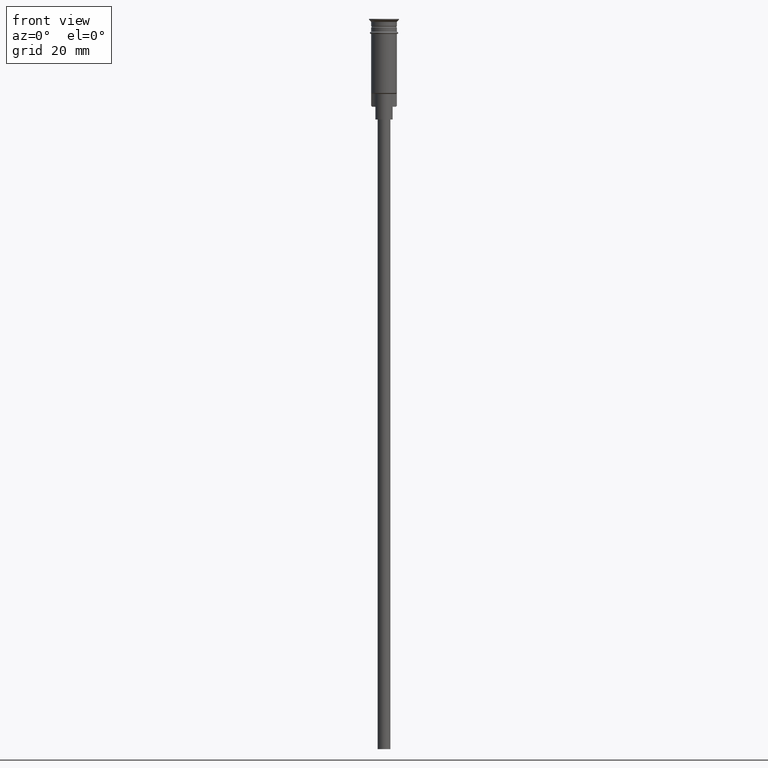
[diagram: clean part render]
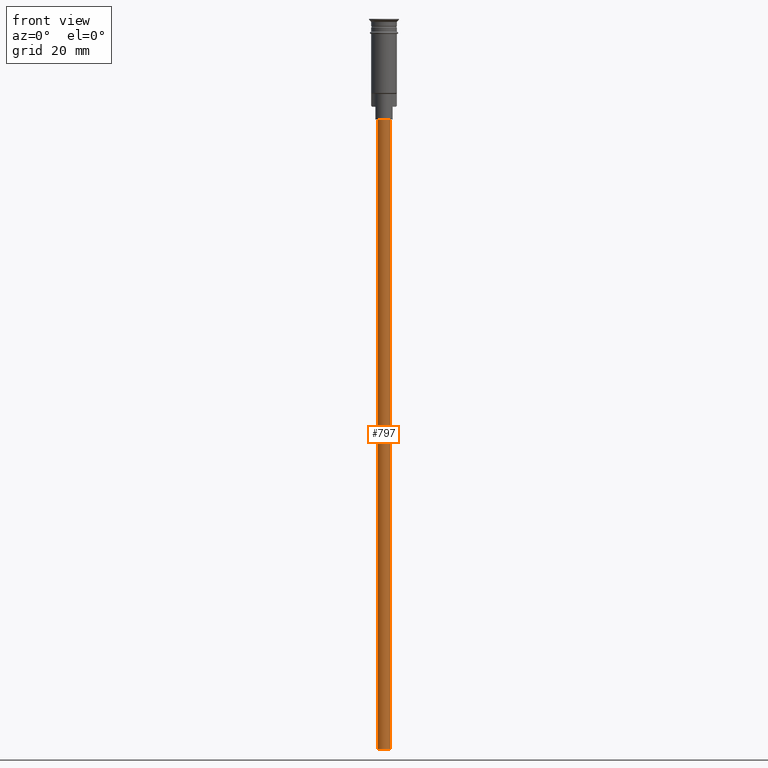
[diagram: same view with one face highlighted and labeled with its STEP entity id]
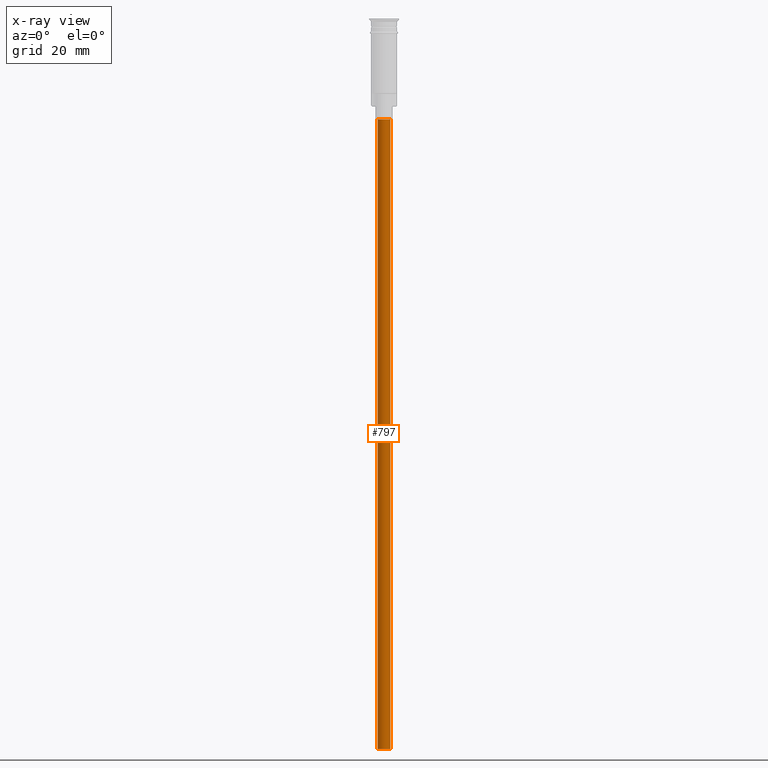
[diagram: x-ray of the same camera — body ghosted, the highlighted face saturated]
A machine part, front view. The second image highlights one B-rep face of the part: STEP entity #797.
The next image is the same camera in x-ray: the body ghosted, the highlighted face saturated — about 0% of this face is hidden behind the body in this view.
In plain terms, the highlighted cylindrical surface (edge-blend (fillet) strip) has radius 1.5 mm, axis along (-0, -0, 1).
Its self-contained STEP definition (entity closure, byte-faithful):
#45 = CARTESIAN_POINT ( 'NONE',  ( -1.500000000000000222, 1.836970198721030181E-16, -170.4999999999999716 ) ) ;
#46 = CARTESIAN_POINT ( 'NONE',  ( 0.000000000000000000, 0.000000000000000000, -170.4999999999999716 ) ) ;
#79 = AXIS2_PLACEMENT_3D ( 'NONE', #1454, #347, #949 ) ;
#149 = VERTEX_POINT ( 'NONE', #45 ) ;
#212 = EDGE_CURVE ( 'NONE', #862, #487, #1120, .T. ) ;
#239 = EDGE_CURVE ( 'NONE', #149, #768, #1349, .T. ) ;
#240 = CARTESIAN_POINT ( 'NONE',  ( -1.500000000000000222, 1.836970198721030181E-16, -170.4999999999999716 ) ) ;
#326 = CARTESIAN_POINT ( 'NONE',  ( 1.500000000000000222, 0.000000000000000000, -170.4999999999999716 ) ) ;
#347 = DIRECTION ( 'NONE',  ( 0.000000000000000000, 0.000000000000000000, -1.000000000000000000 ) ) ;
#441 = CYLINDRICAL_SURFACE ( 'NONE', #1599, 1.500000000000000222 ) ;
#487 = VERTEX_POINT ( 'NONE', #496 ) ;
#495 = CARTESIAN_POINT ( 'NONE',  ( 1.500000000000000222, 0.000000000000000000, -170.4999999999999716 ) ) ;
#496 = CARTESIAN_POINT ( 'NONE',  ( 1.500000000000000222, 0.000000000000000000, -23.50000000000000000 ) ) ;
#557 = DIRECTION ( 'NONE',  ( 1.000000000000000000, 0.000000000000000000, 0.000000000000000000 ) ) ;
#608 = DIRECTION ( 'NONE',  ( -0.000000000000000000, -0.000000000000000000, 1.000000000000000000 ) ) ;
#648 = DIRECTION ( 'NONE',  ( 0.000000000000000000, 0.000000000000000000, -1.000000000000000000 ) ) ;
#768 = VERTEX_POINT ( 'NONE', #1136 ) ;
#791 = AXIS2_PLACEMENT_3D ( 'NONE', #46, #648, #1027 ) ;
#797 = ADVANCED_FACE ( 'NONE', ( #1569 ), #441, .T. ) ;
#813 = DIRECTION ( 'NONE',  ( -0.000000000000000000, -0.000000000000000000, 1.000000000000000000 ) ) ;
#816 = ORIENTED_EDGE ( 'NONE', *, *, #1512, .F. ) ;
#862 = VERTEX_POINT ( 'NONE', #326 ) ;
#941 = CARTESIAN_POINT ( 'NONE',  ( 0.000000000000000000, 0.000000000000000000, -170.4999999999999716 ) ) ;
#949 = DIRECTION ( 'NONE',  ( -1.000000000000000000, 0.000000000000000000, 0.000000000000000000 ) ) ;
#957 = CIRCLE ( 'NONE', #79, 1.500000000000000222 ) ;
#981 = VECTOR ( 'NONE', #608, 1000.000000000000000 ) ;
#1027 = DIRECTION ( 'NONE',  ( -1.000000000000000000, 0.000000000000000000, 0.000000000000000000 ) ) ;
#1120 = LINE ( 'NONE', #495, #1184 ) ;
#1136 = CARTESIAN_POINT ( 'NONE',  ( -1.500000000000000222, 1.836970198721030181E-16, -23.50000000000000000 ) ) ;
#1184 = VECTOR ( 'NONE', #1340, 1000.000000000000000 ) ;
#1243 = ORIENTED_EDGE ( 'NONE', *, *, #239, .F. ) ;
#1285 = ORIENTED_EDGE ( 'NONE', *, *, #212, .T. ) ;
#1340 = DIRECTION ( 'NONE',  ( -0.000000000000000000, -0.000000000000000000, 1.000000000000000000 ) ) ;
#1348 = EDGE_CURVE ( 'NONE', #487, #768, #957, .T. ) ;
#1349 = LINE ( 'NONE', #240, #981 ) ;
#1412 = ORIENTED_EDGE ( 'NONE', *, *, #1348, .T. ) ;
#1454 = CARTESIAN_POINT ( 'NONE',  ( 0.000000000000000000, 0.000000000000000000, -23.50000000000000000 ) ) ;
#1491 = CIRCLE ( 'NONE', #791, 1.500000000000000222 ) ;
#1512 = EDGE_CURVE ( 'NONE', #862, #149, #1491, .T. ) ;
#1557 = EDGE_LOOP ( 'NONE', ( #1243, #816, #1285, #1412 ) ) ;
#1569 = FACE_OUTER_BOUND ( 'NONE', #1557, .T. ) ;
#1599 = AXIS2_PLACEMENT_3D ( 'NONE', #941, #813, #557 ) ;